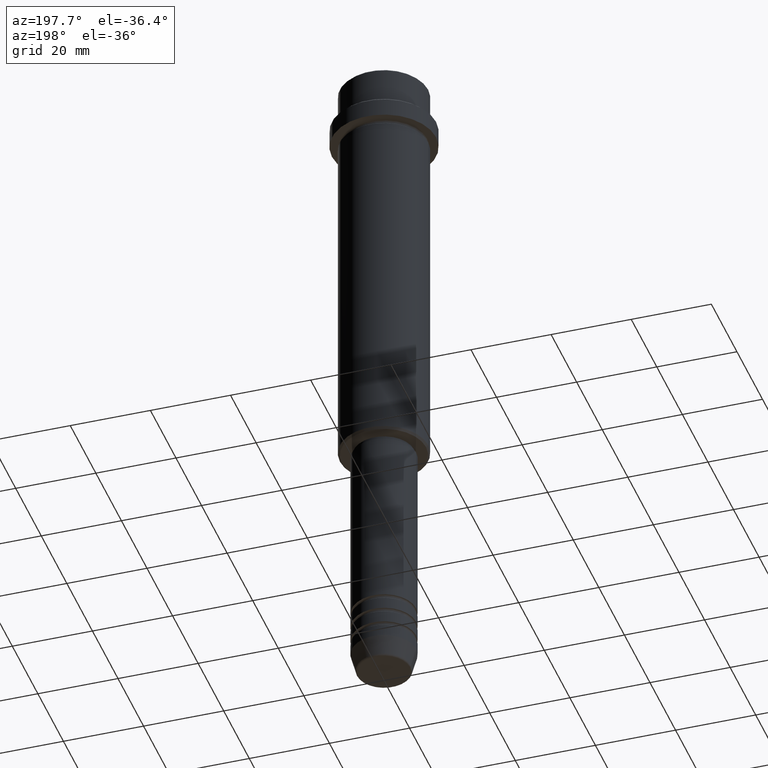
[diagram: clean part render]
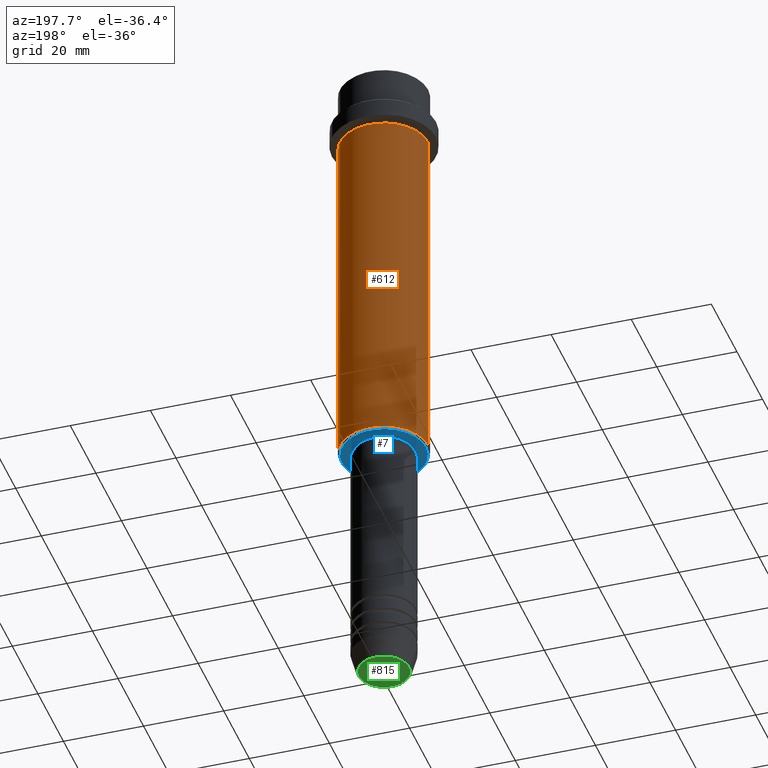
[diagram: same view with three faces highlighted in distinct colors, each labeled with its STEP entity id]
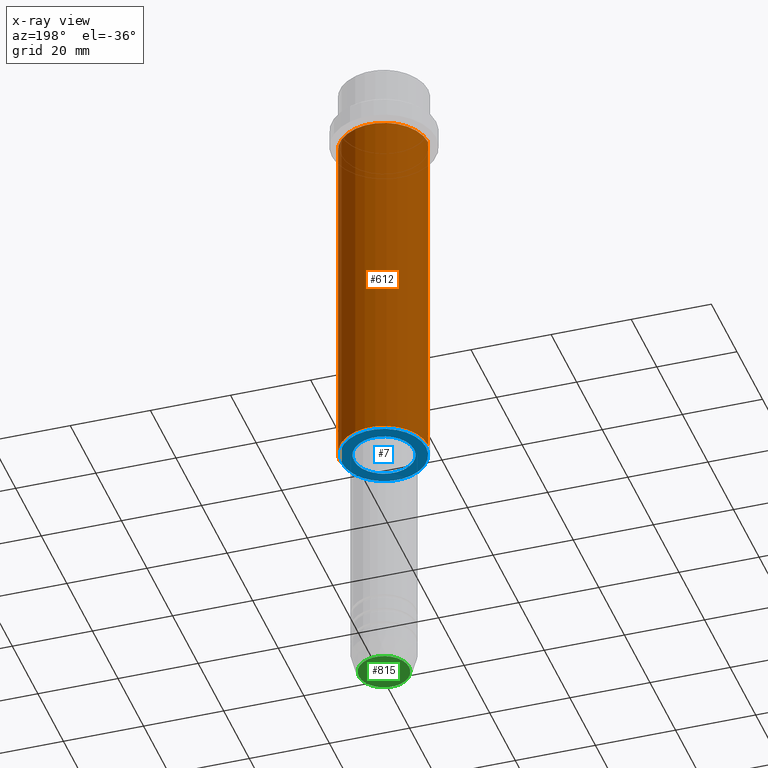
[diagram: x-ray of the same camera — body ghosted, the three highlighted faces saturated]
A machine part, auxiliary view with three faces highlighted in distinct colors.
The next image is the same camera in x-ray (body ghosted, the three faces saturated) — at least one of them is partly hidden behind the body in this view.
Their STEP definitions:

[orange] entity #612 — the highlighted cylindrical surface (partial cylindrical patch) has radius 11 mm, axis along (-0, -0, 1).
#41 = DIRECTION ( 'NONE',  ( -1.000000000000000000, 0.000000000000000000, 0.000000000000000000 ) ) ;
#84 = CARTESIAN_POINT ( 'NONE',  ( 0.000000000000000000, 0.000000000000000000, 0.000000000000000000 ) ) ;
#104 = CARTESIAN_POINT ( 'NONE',  ( 0.000000000000000000, 0.000000000000000000, -16.00000000000000355 ) ) ;
#116 = AXIS2_PLACEMENT_3D ( 'NONE', #84, #1306, #1230 ) ;
#117 = VERTEX_POINT ( 'NONE', #1380 ) ;
#129 = ORIENTED_EDGE ( 'NONE', *, *, #841, .T. ) ;
#139 = CIRCLE ( 'NONE', #664, 10.99999999999998757 ) ;
#140 = CARTESIAN_POINT ( 'NONE',  ( -10.99999999999997158, 1.347111479062085841E-15, -16.00000000000000355 ) ) ;
#193 = ORIENTED_EDGE ( 'NONE', *, *, #979, .F. ) ;
#205 = ORIENTED_EDGE ( 'NONE', *, *, #1139, .F. ) ;
#286 = CIRCLE ( 'NONE', #1099, 10.99999999999997158 ) ;
#308 = ORIENTED_EDGE ( 'NONE', *, *, #1107, .T. ) ;
#332 = DIRECTION ( 'NONE',  ( -0.000000000000000000, -0.000000000000000000, 1.000000000000000000 ) ) ;
#345 = EDGE_LOOP ( 'NONE', ( #129, #308, #205, #193 ) ) ;
#366 = VERTEX_POINT ( 'NONE', #140 ) ;
#408 = VECTOR ( 'NONE', #647, 1000.000000000000000 ) ;
#482 = CARTESIAN_POINT ( 'NONE',  ( 10.99999999999997158, 0.000000000000000000, -16.00000000000000355 ) ) ;
#495 = VECTOR ( 'NONE', #951, 1000.000000000000000 ) ;
#612 = ADVANCED_FACE ( 'NONE', ( #613 ), #1058, .T. ) ;
#613 = FACE_OUTER_BOUND ( 'NONE', #345, .T. ) ;
#647 = DIRECTION ( 'NONE',  ( -0.000000000000000000, -0.000000000000000000, 1.000000000000000000 ) ) ;
#664 = AXIS2_PLACEMENT_3D ( 'NONE', #1033, #1024, #41 ) ;
#753 = VERTEX_POINT ( 'NONE', #1340 ) ;
#768 = DIRECTION ( 'NONE',  ( 1.000000000000000000, 0.000000000000000000, 0.000000000000000000 ) ) ;
#841 = EDGE_CURVE ( 'NONE', #117, #753, #139, .T. ) ;
#859 = VERTEX_POINT ( 'NONE', #482 ) ;
#951 = DIRECTION ( 'NONE',  ( -0.000000000000000000, -0.000000000000000000, 1.000000000000000000 ) ) ;
#979 = EDGE_CURVE ( 'NONE', #117, #859, #1187, .T. ) ;
#1024 = DIRECTION ( 'NONE',  ( -0.000000000000000000, -0.000000000000000000, 1.000000000000000000 ) ) ;
#1033 = CARTESIAN_POINT ( 'NONE',  ( 0.000000000000000000, 0.000000000000000000, -105.5000000000000284 ) ) ;
#1058 = CYLINDRICAL_SURFACE ( 'NONE', #116, 10.99999999999998757 ) ;
#1099 = AXIS2_PLACEMENT_3D ( 'NONE', #104, #332, #768 ) ;
#1107 = EDGE_CURVE ( 'NONE', #753, #366, #1310, .T. ) ;
#1139 = EDGE_CURVE ( 'NONE', #859, #366, #286, .T. ) ;
#1187 = LINE ( 'NONE', #1288, #495 ) ;
#1230 = DIRECTION ( 'NONE',  ( 1.000000000000000000, 0.000000000000000000, 0.000000000000000000 ) ) ;
#1288 = CARTESIAN_POINT ( 'NONE',  ( 10.99999999999998757, 0.000000000000000000, 0.000000000000000000 ) ) ;
#1306 = DIRECTION ( 'NONE',  ( -0.000000000000000000, -0.000000000000000000, 1.000000000000000000 ) ) ;
#1310 = LINE ( 'NONE', #1316, #408 ) ;
#1316 = CARTESIAN_POINT ( 'NONE',  ( -10.99999999999998757, 1.347111479062086827E-15, 0.000000000000000000 ) ) ;
#1340 = CARTESIAN_POINT ( 'NONE',  ( -10.99999999999998757, 1.347111479062086827E-15, -105.5000000000000284 ) ) ;
#1380 = CARTESIAN_POINT ( 'NONE',  ( 10.99999999999998757, 0.000000000000000000, -105.5000000000000284 ) ) ;

[blue] entity #7 — the highlighted planar face has unit normal (0, 0, -1).
#7 = ADVANCED_FACE ( 'NONE', ( #1205, #1301 ), #1408, .T. ) ;
#9 = CARTESIAN_POINT ( 'NONE',  ( 0.000000000000000000, 11.00000000000000355, -105.9999999999999858 ) ) ;
#120 = EDGE_CURVE ( 'NONE', #464, #745, #241, .T. ) ;
#130 = VERTEX_POINT ( 'NONE', #944 ) ;
#233 = EDGE_LOOP ( 'NONE', ( #967, #922 ) ) ;
#241 = CIRCLE ( 'NONE', #632, 7.499999999999963585 ) ;
#260 = CARTESIAN_POINT ( 'NONE',  ( 0.000000000000000000, 0.000000000000000000, -105.9999999999999858 ) ) ;
#278 = ORIENTED_EDGE ( 'NONE', *, *, #641, .T. ) ;
#326 = EDGE_CURVE ( 'NONE', #745, #464, #1028, .T. ) ;
#346 = CARTESIAN_POINT ( 'NONE',  ( 0.000000000000000000, 0.000000000000000000, -105.9999999999999858 ) ) ;
#393 = CARTESIAN_POINT ( 'NONE',  ( 0.000000000000000000, 0.000000000000000000, -105.9999999999999858 ) ) ;
#412 = DIRECTION ( 'NONE',  ( 1.000000000000000000, 0.000000000000000000, 0.000000000000000000 ) ) ;
#413 = AXIS2_PLACEMENT_3D ( 'NONE', #1335, #755, #1013 ) ;
#464 = VERTEX_POINT ( 'NONE', #1346 ) ;
#470 = ORIENTED_EDGE ( 'NONE', *, *, #1244, .T. ) ;
#521 = CIRCLE ( 'NONE', #413, 10.50000000000002309 ) ;
#531 = CARTESIAN_POINT ( 'NONE',  ( -10.50000000000002309, 1.316495309083405209E-15, -105.9999999999999858 ) ) ;
#571 = DIRECTION ( 'NONE',  ( 0.000000000000000000, 0.000000000000000000, -1.000000000000000000 ) ) ;
#632 = AXIS2_PLACEMENT_3D ( 'NONE', #393, #1374, #412 ) ;
#641 = EDGE_CURVE ( 'NONE', #952, #130, #521, .T. ) ;
#700 = DIRECTION ( 'NONE',  ( -1.000000000000000000, 0.000000000000000000, 0.000000000000000000 ) ) ;
#745 = VERTEX_POINT ( 'NONE', #1094 ) ;
#755 = DIRECTION ( 'NONE',  ( 0.000000000000000000, 0.000000000000000000, -1.000000000000000000 ) ) ;
#775 = DIRECTION ( 'NONE',  ( -1.000000000000000000, 0.000000000000000000, -0.000000000000000000 ) ) ;
#777 = AXIS2_PLACEMENT_3D ( 'NONE', #9, #1083, #775 ) ;
#780 = AXIS2_PLACEMENT_3D ( 'NONE', #346, #883, #789 ) ;
#789 = DIRECTION ( 'NONE',  ( 1.000000000000000000, 0.000000000000000000, 0.000000000000000000 ) ) ;
#883 = DIRECTION ( 'NONE',  ( -0.000000000000000000, -0.000000000000000000, 1.000000000000000000 ) ) ;
#922 = ORIENTED_EDGE ( 'NONE', *, *, #326, .T. ) ;
#944 = CARTESIAN_POINT ( 'NONE',  ( 10.50000000000002309, 0.000000000000000000, -105.9999999999999858 ) ) ;
#952 = VERTEX_POINT ( 'NONE', #531 ) ;
#967 = ORIENTED_EDGE ( 'NONE', *, *, #120, .T. ) ;
#1013 = DIRECTION ( 'NONE',  ( -1.000000000000000000, 0.000000000000000000, 0.000000000000000000 ) ) ;
#1028 = CIRCLE ( 'NONE', #780, 7.499999999999963585 ) ;
#1083 = DIRECTION ( 'NONE',  ( 0.000000000000000000, 0.000000000000000000, -1.000000000000000000 ) ) ;
#1094 = CARTESIAN_POINT ( 'NONE',  ( -7.499999999999963585, 9.184850993605104557E-16, -105.9999999999999858 ) ) ;
#1118 = CIRCLE ( 'NONE', #1299, 10.50000000000002309 ) ;
#1174 = EDGE_LOOP ( 'NONE', ( #470, #278 ) ) ;
#1205 = FACE_OUTER_BOUND ( 'NONE', #1174, .T. ) ;
#1244 = EDGE_CURVE ( 'NONE', #130, #952, #1118, .T. ) ;
#1299 = AXIS2_PLACEMENT_3D ( 'NONE', #260, #571, #700 ) ;
#1301 = FACE_BOUND ( 'NONE', #233, .T. ) ;
#1335 = CARTESIAN_POINT ( 'NONE',  ( 0.000000000000000000, 0.000000000000000000, -105.9999999999999858 ) ) ;
#1346 = CARTESIAN_POINT ( 'NONE',  ( 7.499999999999963585, 0.000000000000000000, -105.9999999999999858 ) ) ;
#1374 = DIRECTION ( 'NONE',  ( -0.000000000000000000, -0.000000000000000000, 1.000000000000000000 ) ) ;
#1408 = PLANE ( 'NONE',  #777 ) ;

[green] entity #815 — the highlighted planar face has unit normal (0, -0, 1).
#52 = DIRECTION ( 'NONE',  ( 1.000000000000000000, 0.000000000000000000, 0.000000000000000000 ) ) ;
#127 = DIRECTION ( 'NONE',  ( 1.000000000000000000, 0.000000000000000000, 0.000000000000000000 ) ) ;
#170 = DIRECTION ( 'NONE',  ( 0.000000000000000000, -0.000000000000000000, 1.000000000000000000 ) ) ;
#208 = CARTESIAN_POINT ( 'NONE',  ( 6.276590543854904780, 0.000000000000000000, -170.0000000000000000 ) ) ;
#325 = VERTEX_POINT ( 'NONE', #425 ) ;
#347 = DIRECTION ( 'NONE',  ( 0.000000000000000000, 0.000000000000000000, -1.000000000000000000 ) ) ;
#395 = DIRECTION ( 'NONE',  ( 0.000000000000000000, 0.000000000000000000, -1.000000000000000000 ) ) ;
#425 = CARTESIAN_POINT ( 'NONE',  ( -6.276590543854904780, 7.982336011935122327E-16, -170.0000000000000000 ) ) ;
#500 = CIRCLE ( 'NONE', #1168, 6.276590543854904780 ) ;
#595 = CARTESIAN_POINT ( 'NONE',  ( 0.000000000000000000, 0.000000000000000000, -170.0000000000000000 ) ) ;
#630 = ORIENTED_EDGE ( 'NONE', *, *, #1056, .T. ) ;
#654 = CARTESIAN_POINT ( 'NONE',  ( 0.000000000000000000, 0.000000000000000000, -170.0000000000000000 ) ) ;
#692 = PLANE ( 'NONE',  #941 ) ;
#729 = ORIENTED_EDGE ( 'NONE', *, *, #763, .T. ) ;
#763 = EDGE_CURVE ( 'NONE', #325, #1015, #500, .T. ) ;
#779 = CIRCLE ( 'NONE', #1027, 6.276590543854904780 ) ;
#813 = CARTESIAN_POINT ( 'NONE',  ( 0.000000000000000000, 0.000000000000000000, -170.0000000000000000 ) ) ;
#815 = ADVANCED_FACE ( 'NONE', ( #1241 ), #692, .F. ) ;
#941 = AXIS2_PLACEMENT_3D ( 'NONE', #595, #170, #1131 ) ;
#1015 = VERTEX_POINT ( 'NONE', #208 ) ;
#1027 = AXIS2_PLACEMENT_3D ( 'NONE', #654, #347, #127 ) ;
#1056 = EDGE_CURVE ( 'NONE', #1015, #325, #779, .T. ) ;
#1131 = DIRECTION ( 'NONE',  ( 1.000000000000000000, 0.000000000000000000, 0.000000000000000000 ) ) ;
#1168 = AXIS2_PLACEMENT_3D ( 'NONE', #813, #395, #52 ) ;
#1241 = FACE_OUTER_BOUND ( 'NONE', #1295, .T. ) ;
#1295 = EDGE_LOOP ( 'NONE', ( #630, #729 ) ) ;